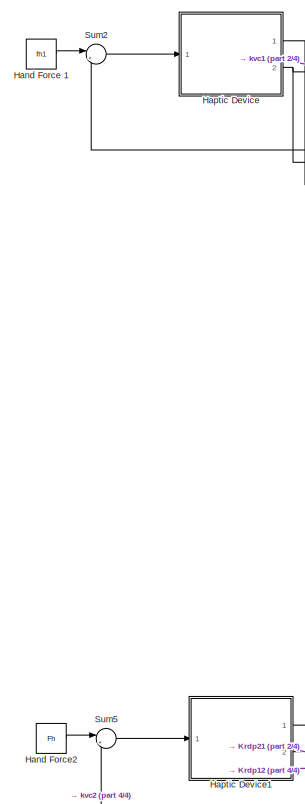
[diagram: root canvas - part 1/4, left side, full height]
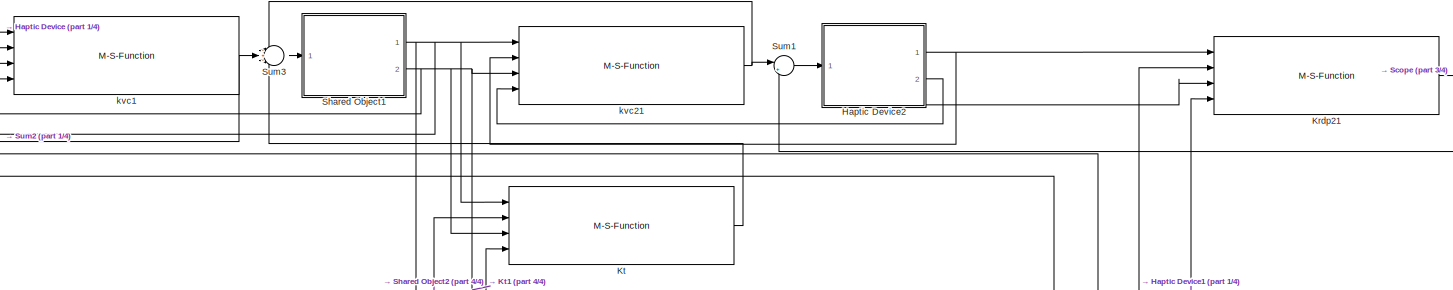
[diagram: root canvas - part 2/4, full width, top band]
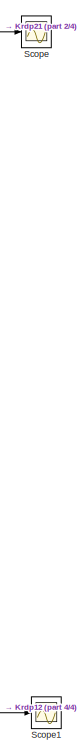
[diagram: root canvas - part 3/4, right side, full height]
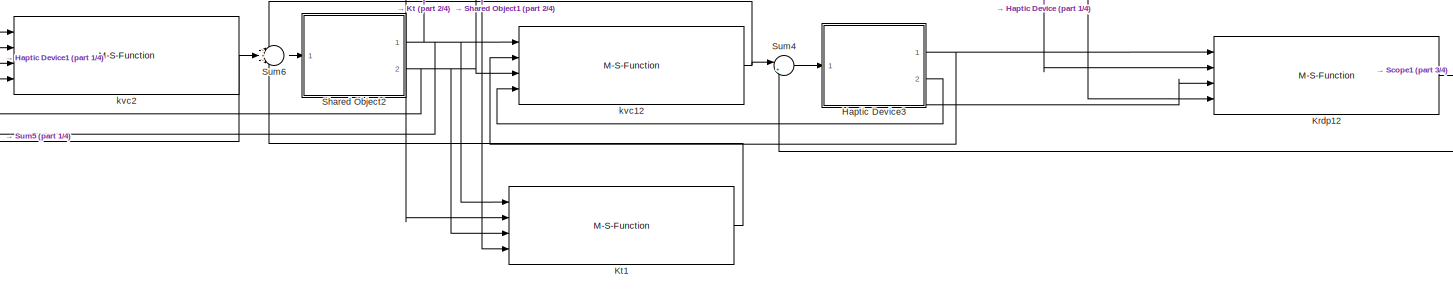
[diagram: root canvas - part 4/4, full width, bottom band]
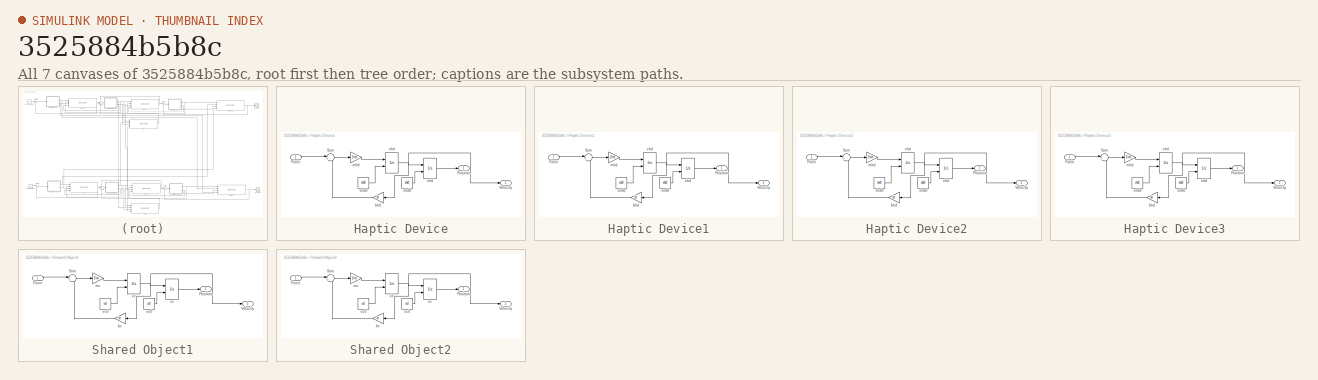
[diagram: thumbnail index - all 7 canvases of the model, root first then tree order]
MODEL slx_3525884b5b8c
KIND model
CONFIG AbsTol = auto
CONFIG EnableMultiTasking = off
CONFIG FixedStep = auto
CONFIG MaxStep = auto
CONFIG MinStep = auto
CONFIG RelTol = 1e-3
CONFIG SampleTimeConstraint = Unconstrained
CONFIG Solver = VariableStepAuto
CONFIG SolverName = VariableStepAuto
CONFIG StartTime = 0.0
CONFIG StopTime = 10
BLOCK [Constant] Hand Force 1
  Value = fh1
BLOCK [Constant] Hand Force2
  Value = Fh
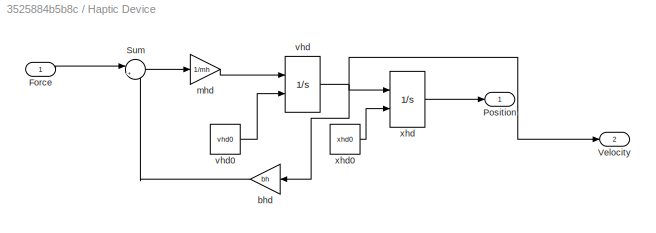
BLOCK [SubSystem] Haptic Device
  Ports = [1, 2]
  RequestExecContextInheritance = off
  Variant = off
BLOCK [Inport] Haptic Device/Force
  IconDisplay = Port number
BLOCK [Outport] Haptic Device/Position
  IconDisplay = Port number
BLOCK [Sum] Haptic Device/Sum
  IconShape = round
  InputSameDT = off
  Inputs = |+-
  OutDataTypeStr = Inherit: Inherit via internal rule
  Ports = [2, 1]
  SaturateOnIntegerOverflow = off
BLOCK [Outport] Haptic Device/Velocity
  IconDisplay = Port number
  Port = 2
BLOCK [Gain] Haptic Device/bhd
  Gain = bh
  OutDataTypeStr = Inherit: Inherit via internal rule
  ParamDataTypeStr = Inherit: Inherit via internal rule
  SaturateOnIntegerOverflow = off
BLOCK [Gain] Haptic Device/mhd
  Gain = 1/mh
  OutDataTypeStr = Inherit: Inherit via internal rule
  ParamDataTypeStr = Inherit: Inherit via internal rule
  SaturateOnIntegerOverflow = off
BLOCK [Integrator] Haptic Device/vhd
  InitialConditionSource = external
  Ports = [2, 1]
BLOCK [Constant] Haptic Device/vhd0
  Value = vhd0
BLOCK [Integrator] Haptic Device/xhd
  InitialConditionSource = external
  Ports = [2, 1]
BLOCK [Constant] Haptic Device/xhd0
  Value = xhd0
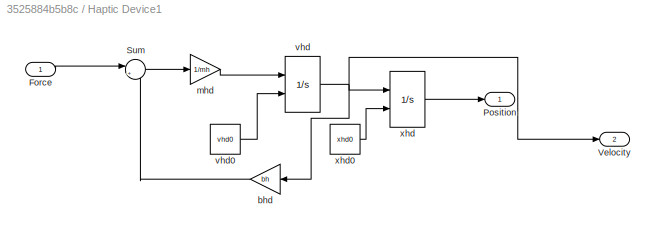
BLOCK [SubSystem] Haptic Device1
  Ports = [1, 2]
  RequestExecContextInheritance = off
  Variant = off
BLOCK [Inport] Haptic Device1/Force
  IconDisplay = Port number
BLOCK [Outport] Haptic Device1/Position
  IconDisplay = Port number
BLOCK [Sum] Haptic Device1/Sum
  IconShape = round
  InputSameDT = off
  Inputs = |+-
  OutDataTypeStr = Inherit: Inherit via internal rule
  Ports = [2, 1]
  SaturateOnIntegerOverflow = off
BLOCK [Outport] Haptic Device1/Velocity
  IconDisplay = Port number
  Port = 2
BLOCK [Gain] Haptic Device1/bhd
  Gain = bh
  OutDataTypeStr = Inherit: Inherit via internal rule
  ParamDataTypeStr = Inherit: Inherit via internal rule
  SaturateOnIntegerOverflow = off
BLOCK [Gain] Haptic Device1/mhd
  Gain = 1/mh
  OutDataTypeStr = Inherit: Inherit via internal rule
  ParamDataTypeStr = Inherit: Inherit via internal rule
  SaturateOnIntegerOverflow = off
BLOCK [Integrator] Haptic Device1/vhd
  InitialConditionSource = external
  Ports = [2, 1]
BLOCK [Constant] Haptic Device1/vhd0
  Value = vhd0
BLOCK [Integrator] Haptic Device1/xhd
  InitialConditionSource = external
  Ports = [2, 1]
BLOCK [Constant] Haptic Device1/xhd0
  Value = xhd0
BLOCK [SubSystem] Haptic Device2
  Ports = [1, 2]
  RequestExecContextInheritance = off
  Variant = off
BLOCK [Inport] Haptic Device2/Force
  IconDisplay = Port number
BLOCK [Outport] Haptic Device2/Position
  IconDisplay = Port number
BLOCK [Sum] Haptic Device2/Sum
  IconShape = round
  InputSameDT = off
  Inputs = |+-
  OutDataTypeStr = Inherit: Inherit via internal rule
  Ports = [2, 1]
  SaturateOnIntegerOverflow = off
BLOCK [Outport] Haptic Device2/Velocity
  IconDisplay = Port number
  Port = 2
BLOCK [Gain] Haptic Device2/bhd
  Gain = bh
  OutDataTypeStr = Inherit: Inherit via internal rule
  ParamDataTypeStr = Inherit: Inherit via internal rule
  SaturateOnIntegerOverflow = off
BLOCK [Gain] Haptic Device2/mhd
  Gain = 1/mh
  OutDataTypeStr = Inherit: Inherit via internal rule
  ParamDataTypeStr = Inherit: Inherit via internal rule
  SaturateOnIntegerOverflow = off
BLOCK [Integrator] Haptic Device2/vhd
  InitialConditionSource = external
  Ports = [2, 1]
BLOCK [Constant] Haptic Device2/vhd0
  Value = vhd0
BLOCK [Integrator] Haptic Device2/xhd
  InitialConditionSource = external
  Ports = [2, 1]
BLOCK [Constant] Haptic Device2/xhd0
  Value = xhd0
BLOCK [SubSystem] Haptic Device3
  Ports = [1, 2]
  RequestExecContextInheritance = off
  Variant = off
BLOCK [Inport] Haptic Device3/Force
  IconDisplay = Port number
BLOCK [Outport] Haptic Device3/Position
  IconDisplay = Port number
BLOCK [Sum] Haptic Device3/Sum
  IconShape = round
  InputSameDT = off
  Inputs = |+-
  OutDataTypeStr = Inherit: Inherit via internal rule
  Ports = [2, 1]
  SaturateOnIntegerOverflow = off
BLOCK [Outport] Haptic Device3/Velocity
  IconDisplay = Port number
  Port = 2
BLOCK [Gain] Haptic Device3/bhd
  Gain = bh
  OutDataTypeStr = Inherit: Inherit via internal rule
  ParamDataTypeStr = Inherit: Inherit via internal rule
  SaturateOnIntegerOverflow = off
BLOCK [Gain] Haptic Device3/mhd
  Gain = 1/mh
  OutDataTypeStr = Inherit: Inherit via internal rule
  ParamDataTypeStr = Inherit: Inherit via internal rule
  SaturateOnIntegerOverflow = off
BLOCK [Integrator] Haptic Device3/vhd
  InitialConditionSource = external
  Ports = [2, 1]
BLOCK [Constant] Haptic Device3/vhd0
  Value = vhd0
BLOCK [Integrator] Haptic Device3/xhd
  InitialConditionSource = external
  Ports = [2, 1]
BLOCK [Constant] Haptic Device3/xhd0
  Value = xhd0
BLOCK [M-S-Function] Krdp12
  FunctionName = virtualcouplingRdp
  Parameters = Krdp, Brdp
  Ports = [4, 1]
BLOCK [M-S-Function] Krdp21
  FunctionName = virtualcouplingRdp
  Parameters = Krdp, Brdp
  Ports = [4, 1]
BLOCK [M-S-Function] Kt
  FunctionName = virtualcoupling3
  Parameters = Kt,Bt
  Ports = [4, 1]
BLOCK [M-S-Function] Kt1
  FunctionName = virtualcoupling3
  Parameters = Kt,Bt
  Ports = [4, 1]
BLOCK [Scope] Scope
  NumInputPorts = 1
  Ports = [1]
  ScopeSpecificationString = Simulink.scopes.TimeScopeBlockCfg('CurrentConfiguration', extmgr.ConfigurationSet(extmgr.Configuration('Core','General UI',true),extmgr.Configuration('Core','Source UI',true),extmgr.Configuration('Sources','WiredSimulink',true),extmgr.Configuration('Visuals','Time Domain',true,'SerializedDisplays',{struct('MinYLimReal','-8.69707','MaxYLimReal','42.15202','YLabelReal','','MinYLimMag','0.00000','Max...<+1376ch>
BLOCK [Scope] Scope1
  NumInputPorts = 1
  Ports = [1]
  ScopeSpecificationString = Simulink.scopes.TimeScopeBlockCfg('CurrentConfiguration', extmgr.ConfigurationSet(extmgr.Configuration('Core','General UI',true),extmgr.Configuration('Core','Source UI',true),extmgr.Configuration('Sources','WiredSimulink',true,'DataLoggingVariableName','ScopeData1'),extmgr.Configuration('Visuals','Time Domain',true,'SerializedDisplays',{struct('MinYLimReal','-8.69707','MaxYLimReal','42.15202','YLa...<+1415ch>
BLOCK [SubSystem] Shared Object1
  Ports = [1, 2]
  RequestExecContextInheritance = off
  Variant = off
BLOCK [Inport] Shared Object1/Force
  IconDisplay = Port number
BLOCK [Outport] Shared Object1/Position
  IconDisplay = Port number
BLOCK [Sum] Shared Object1/Sum
  IconShape = round
  InputSameDT = off
  Inputs = |+-
  OutDataTypeStr = Inherit: Inherit via internal rule
  Ports = [2, 1]
  SaturateOnIntegerOverflow = off
BLOCK [Outport] Shared Object1/Velocity
  IconDisplay = Port number
  Port = 2
BLOCK [Gain] Shared Object1/bc 
  Gain = bc
  OutDataTypeStr = Inherit: Inherit via internal rule
  ParamDataTypeStr = Inherit: Inherit via internal rule
  SaturateOnIntegerOverflow = off
BLOCK [Gain] Shared Object1/mc
  Gain = 1/mc
  OutDataTypeStr = Inherit: Inherit via internal rule
  ParamDataTypeStr = Inherit: Inherit via internal rule
  SaturateOnIntegerOverflow = off
BLOCK [Integrator] Shared Object1/vc
  InitialConditionSource = external
  Ports = [2, 1]
BLOCK [Constant] Shared Object1/vc0
  Value = vc0
BLOCK [Integrator] Shared Object1/xc
  InitialConditionSource = external
  Ports = [2, 1]
BLOCK [Constant] Shared Object1/xc0
  Value = xc0
BLOCK [SubSystem] Shared Object2
  Ports = [1, 2]
  RequestExecContextInheritance = off
  Variant = off
BLOCK [Inport] Shared Object2/Force
  IconDisplay = Port number
BLOCK [Outport] Shared Object2/Position
  IconDisplay = Port number
BLOCK [Sum] Shared Object2/Sum
  IconShape = round
  InputSameDT = off
  Inputs = |+-
  OutDataTypeStr = Inherit: Inherit via internal rule
  Ports = [2, 1]
  SaturateOnIntegerOverflow = off
BLOCK [Outport] Shared Object2/Velocity
  IconDisplay = Port number
  Port = 2
BLOCK [Gain] Shared Object2/bc 
  Gain = bc
  OutDataTypeStr = Inherit: Inherit via internal rule
  ParamDataTypeStr = Inherit: Inherit via internal rule
  SaturateOnIntegerOverflow = off
BLOCK [Gain] Shared Object2/mc
  Gain = 1/mc
  OutDataTypeStr = Inherit: Inherit via internal rule
  ParamDataTypeStr = Inherit: Inherit via internal rule
  SaturateOnIntegerOverflow = off
BLOCK [Integrator] Shared Object2/vc
  InitialConditionSource = external
  Ports = [2, 1]
BLOCK [Constant] Shared Object2/vc0
  Value = vc0
BLOCK [Integrator] Shared Object2/xc
  InitialConditionSource = external
  Ports = [2, 1]
BLOCK [Constant] Shared Object2/xc0
  Value = xc0
BLOCK [Sum] Sum1
  IconShape = round
  InputSameDT = off
  Inputs = |+-
  OutDataTypeStr = Inherit: Inherit via internal rule
  Ports = [2, 1]
  SaturateOnIntegerOverflow = off
BLOCK [Sum] Sum2
  IconShape = round
  InputSameDT = off
  Inputs = |+-
  OutDataTypeStr = Inherit: Inherit via internal rule
  Ports = [2, 1]
  SaturateOnIntegerOverflow = off
BLOCK [Sum] Sum3
  IconShape = round
  InputSameDT = off
  Inputs = -+-
  OutDataTypeStr = Inherit: Inherit via internal rule
  Ports = [3, 1]
  SaturateOnIntegerOverflow = off
BLOCK [Sum] Sum4
  IconShape = round
  InputSameDT = off
  Inputs = |+-
  OutDataTypeStr = Inherit: Inherit via internal rule
  Ports = [2, 1]
  SaturateOnIntegerOverflow = off
BLOCK [Sum] Sum5
  IconShape = round
  InputSameDT = off
  Inputs = |+-
  OutDataTypeStr = Inherit: Inherit via internal rule
  Ports = [2, 1]
  SaturateOnIntegerOverflow = off
BLOCK [Sum] Sum6
  IconShape = round
  InputSameDT = off
  Inputs = -+-
  OutDataTypeStr = Inherit: Inherit via internal rule
  Ports = [3, 1]
  SaturateOnIntegerOverflow = off
BLOCK [M-S-Function] kvc1
  FunctionName = virtualcoupling1
  Parameters = Kvc,Bvc
  Ports = [4, 1]
BLOCK [M-S-Function] kvc12
  FunctionName = virtualcoupling2
  Parameters = Kvc,Bvc
  Ports = [4, 1]
BLOCK [M-S-Function] kvc2
  FunctionName = virtualcoupling1
  Parameters = Kvc,Bvc
  Ports = [4, 1]
BLOCK [M-S-Function] kvc21
  FunctionName = virtualcoupling2
  Parameters = Kvc,Bvc
  Ports = [4, 1]
LINE Hand Force 1:1 -> Sum2:1
LINE Hand Force2:1 -> Sum5:1
LINE Haptic Device/Force:1 -> Haptic Device/Sum:1
LINE Haptic Device/Sum:1 -> Haptic Device/mhd:1
LINE Haptic Device/bhd:1 -> Haptic Device/Sum:2
LINE Haptic Device/mhd:1 -> Haptic Device/vhd:1
LINE Haptic Device/vhd0:1 -> Haptic Device/vhd:2
NET Haptic Device/vhd:1 -> Haptic Device/Velocity:1, Haptic Device/bhd:1, Haptic Device/xhd:1
LINE Haptic Device/xhd0:1 -> Haptic Device/xhd:2
LINE Haptic Device/xhd:1 -> Haptic Device/Position:1
LINE Haptic Device1/Force:1 -> Haptic Device1/Sum:1
LINE Haptic Device1/Sum:1 -> Haptic Device1/mhd:1
LINE Haptic Device1/bhd:1 -> Haptic Device1/Sum:2
LINE Haptic Device1/mhd:1 -> Haptic Device1/vhd:1
LINE Haptic Device1/vhd0:1 -> Haptic Device1/vhd:2
NET Haptic Device1/vhd:1 -> Haptic Device1/Velocity:1, Haptic Device1/bhd:1, Haptic Device1/xhd:1
LINE Haptic Device1/xhd0:1 -> Haptic Device1/xhd:2
LINE Haptic Device1/xhd:1 -> Haptic Device1/Position:1
NET Haptic Device1:1 -> Krdp21:2, kvc2:1
NET Haptic Device1:2 -> Krdp21:4, kvc2:3
LINE Haptic Device2/Force:1 -> Haptic Device2/Sum:1
LINE Haptic Device2/Sum:1 -> Haptic Device2/mhd:1
LINE Haptic Device2/bhd:1 -> Haptic Device2/Sum:2
LINE Haptic Device2/mhd:1 -> Haptic Device2/vhd:1
LINE Haptic Device2/vhd0:1 -> Haptic Device2/vhd:2
NET Haptic Device2/vhd:1 -> Haptic Device2/Velocity:1, Haptic Device2/bhd:1, Haptic Device2/xhd:1
LINE Haptic Device2/xhd0:1 -> Haptic Device2/xhd:2
LINE Haptic Device2/xhd:1 -> Haptic Device2/Position:1
NET Haptic Device2:1 -> Krdp21:1, kvc21:2
NET Haptic Device2:2 -> Krdp21:3, kvc21:4
LINE Haptic Device3/Force:1 -> Haptic Device3/Sum:1
LINE Haptic Device3/Sum:1 -> Haptic Device3/mhd:1
LINE Haptic Device3/bhd:1 -> Haptic Device3/Sum:2
LINE Haptic Device3/mhd:1 -> Haptic Device3/vhd:1
LINE Haptic Device3/vhd0:1 -> Haptic Device3/vhd:2
NET Haptic Device3/vhd:1 -> Haptic Device3/Velocity:1, Haptic Device3/bhd:1, Haptic Device3/xhd:1
LINE Haptic Device3/xhd0:1 -> Haptic Device3/xhd:2
LINE Haptic Device3/xhd:1 -> Haptic Device3/Position:1
NET Haptic Device3:1 -> Krdp12:1, kvc12:2
NET Haptic Device3:2 -> Krdp12:3, kvc12:4
NET Haptic Device:1 -> Krdp12:2, kvc1:1
NET Haptic Device:2 -> Krdp12:4, kvc1:3
NET Krdp12:1 -> Scope1:1, Sum4:2
NET Krdp21:1 -> Scope:1, Sum1:2
LINE Kt1:1 -> Sum6:3
LINE Kt:1 -> Sum3:3
LINE Shared Object1/Force:1 -> Shared Object1/Sum:1
LINE Shared Object1/Sum:1 -> Shared Object1/mc:1
LINE Shared Object1/bc :1 -> Shared Object1/Sum:2
LINE Shared Object1/mc:1 -> Shared Object1/vc:1
LINE Shared Object1/vc0:1 -> Shared Object1/vc:2
NET Shared Object1/vc:1 -> Shared Object1/Velocity:1, Shared Object1/bc :1, Shared Object1/xc:1
LINE Shared Object1/xc0:1 -> Shared Object1/xc:2
LINE Shared Object1/xc:1 -> Shared Object1/Position:1
NET Shared Object1:1 -> Kt1:2, Kt:1, kvc1:2, kvc21:1
NET Shared Object1:2 -> Kt1:4, Kt:3, kvc1:4, kvc21:3
LINE Shared Object2/Force:1 -> Shared Object2/Sum:1
LINE Shared Object2/Sum:1 -> Shared Object2/mc:1
LINE Shared Object2/bc :1 -> Shared Object2/Sum:2
LINE Shared Object2/mc:1 -> Shared Object2/vc:1
LINE Shared Object2/vc0:1 -> Shared Object2/vc:2
NET Shared Object2/vc:1 -> Shared Object2/Velocity:1, Shared Object2/bc :1, Shared Object2/xc:1
LINE Shared Object2/xc0:1 -> Shared Object2/xc:2
LINE Shared Object2/xc:1 -> Shared Object2/Position:1
NET Shared Object2:1 -> Kt1:1, Kt:2, kvc12:1, kvc2:2
NET Shared Object2:2 -> Kt1:3, Kt:4, kvc12:3, kvc2:4
LINE Sum1:1 -> Haptic Device2:1
LINE Sum2:1 -> Haptic Device:1
LINE Sum3:1 -> Shared Object1:1
LINE Sum4:1 -> Haptic Device3:1
LINE Sum5:1 -> Haptic Device1:1
LINE Sum6:1 -> Shared Object2:1
NET kvc12:1 -> Sum4:1, Sum6:1
NET kvc1:1 -> Sum2:2, Sum3:2
NET kvc21:1 -> Sum1:1, Sum3:1
NET kvc2:1 -> Sum5:2, Sum6:2
note: NET lines group one-source signal fan-out (src -> all destinations, sorted); 1:1 wires keep LINE
